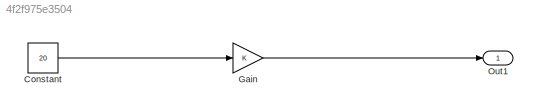
MODEL slx_4f2f975e3504
KIND model
CONFIG AbsTol = auto
CONFIG EnableMultiTasking = off
CONFIG FixedStep = auto
CONFIG MaxStep = auto
CONFIG MinStep = auto
CONFIG RelTol = 1e-3
CONFIG SampleTimeConstraint = Unconstrained
CONFIG SolverName = FixedStepAuto
CONFIG StartTime = 0.0
CONFIG StopTime = 50
BLOCK [Constant] Constant
  Value = 20
BLOCK [Gain] Gain
BLOCK [Outport] Out1
LINE Constant:1 -> Gain:1
LINE Gain:1 -> Out1:1
